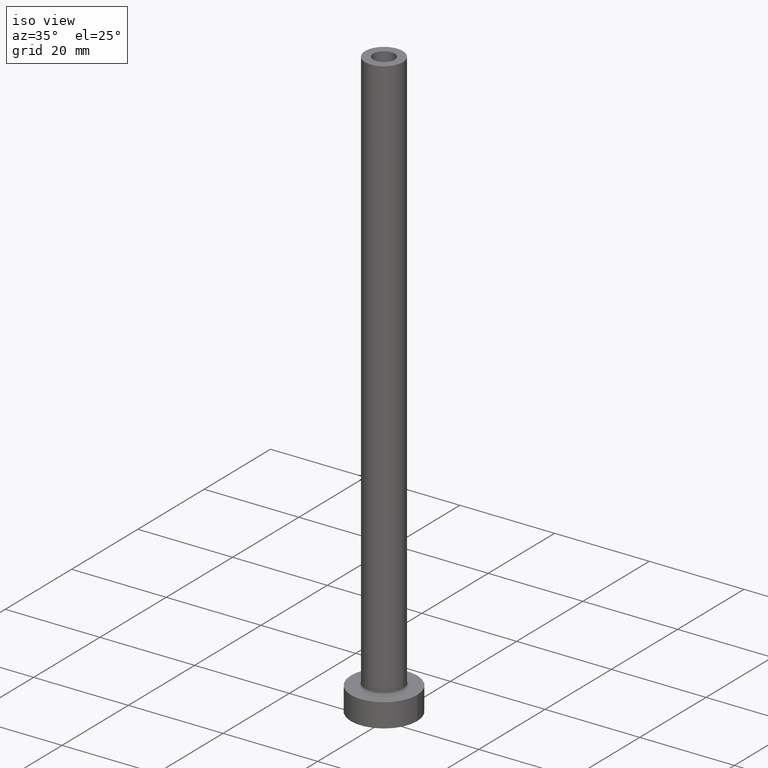
[diagram: clean part render]
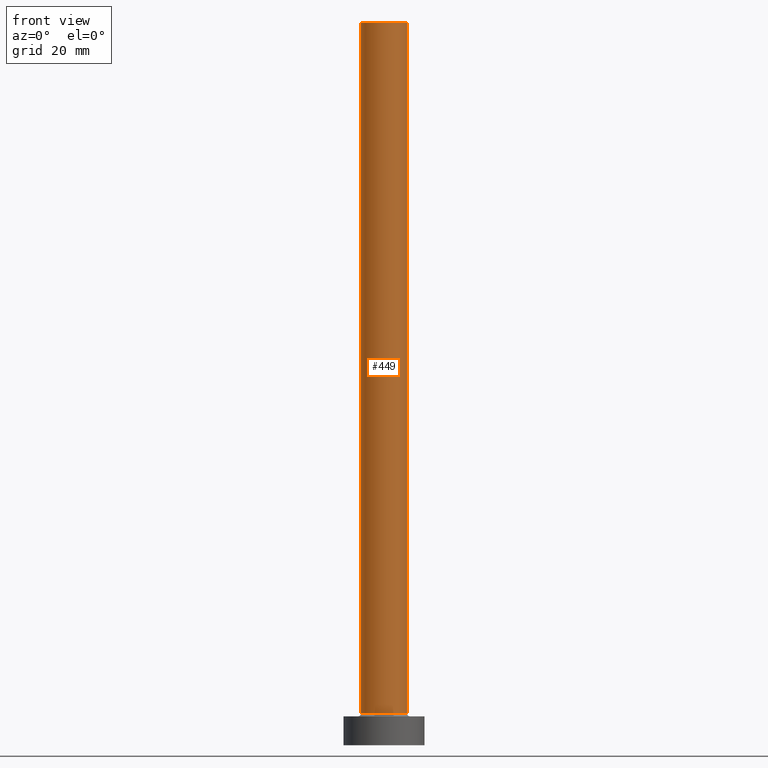
[diagram: tour spotlight — one face highlighted and labeled with its STEP entity id]
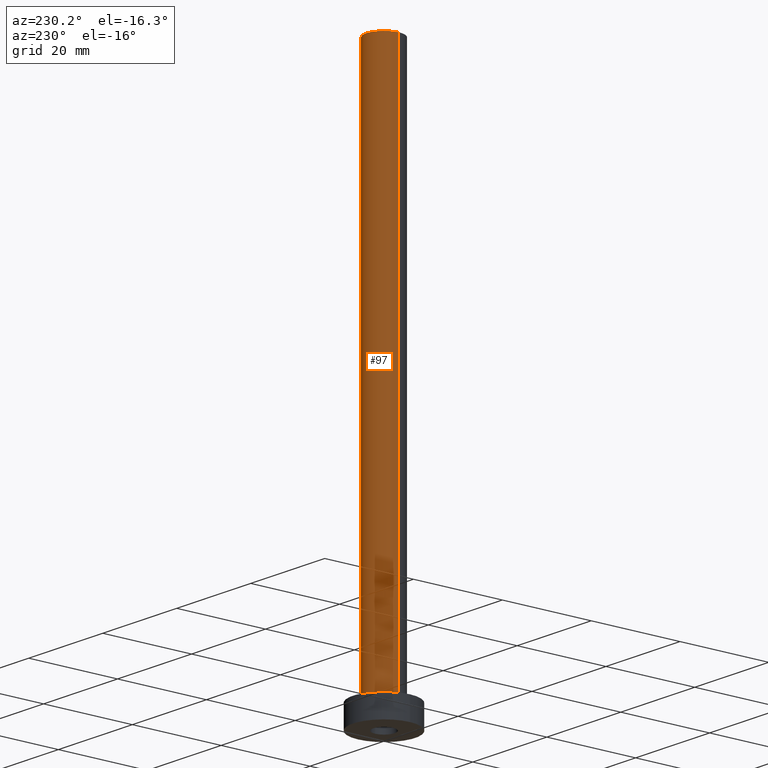
[diagram: tour spotlight — one face highlighted and labeled with its STEP entity id]
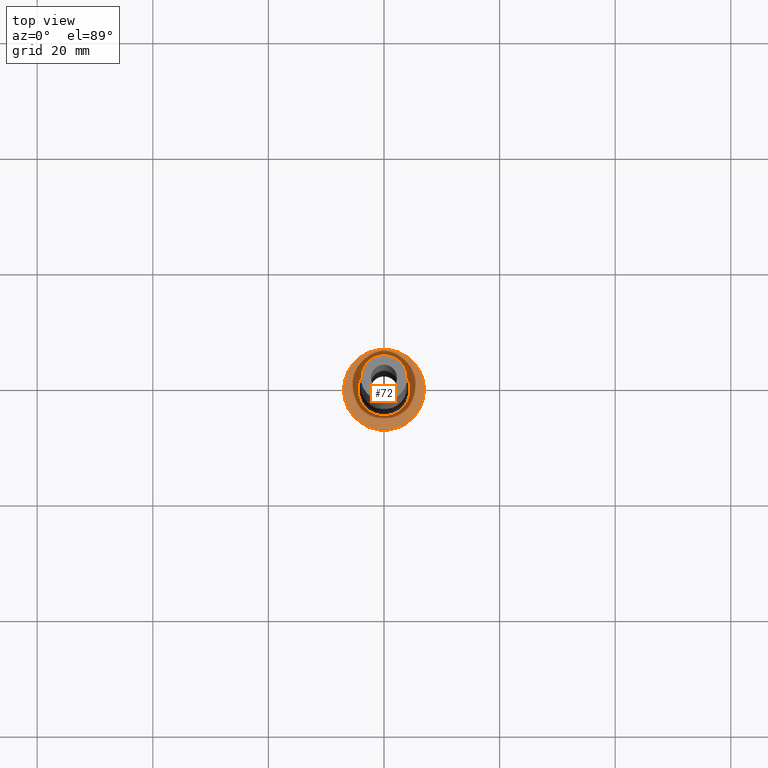
[diagram: tour spotlight — one face highlighted and labeled with its STEP entity id]
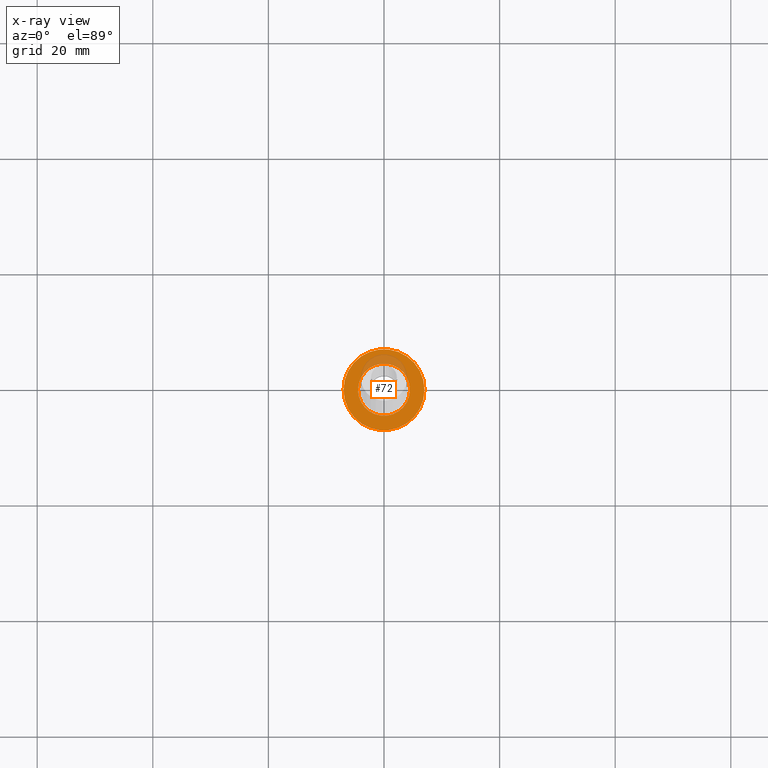
[diagram: x-ray of the same camera — body ghosted, this tour face saturated]
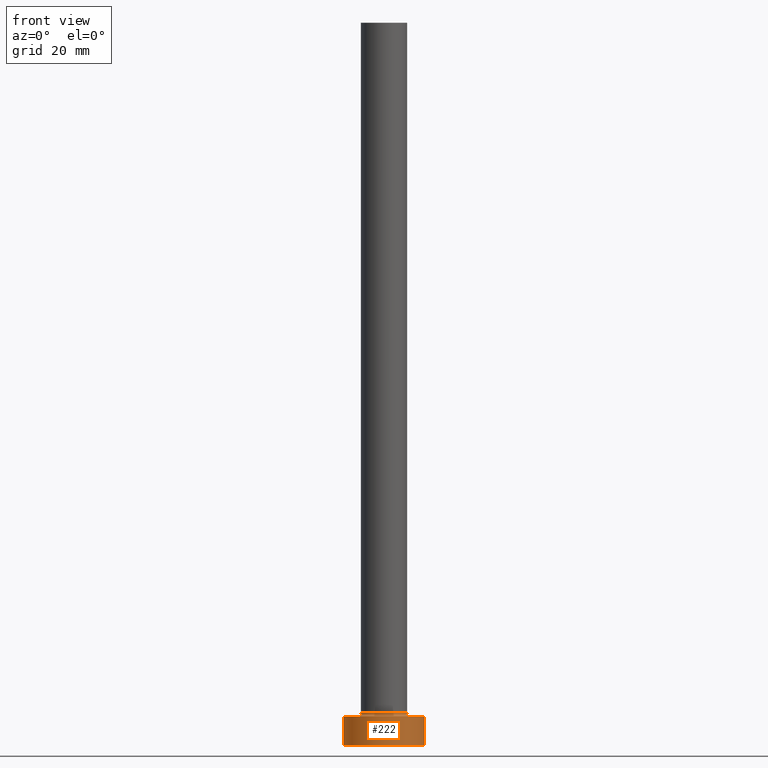
[diagram: tour spotlight — one face highlighted and labeled with its STEP entity id]
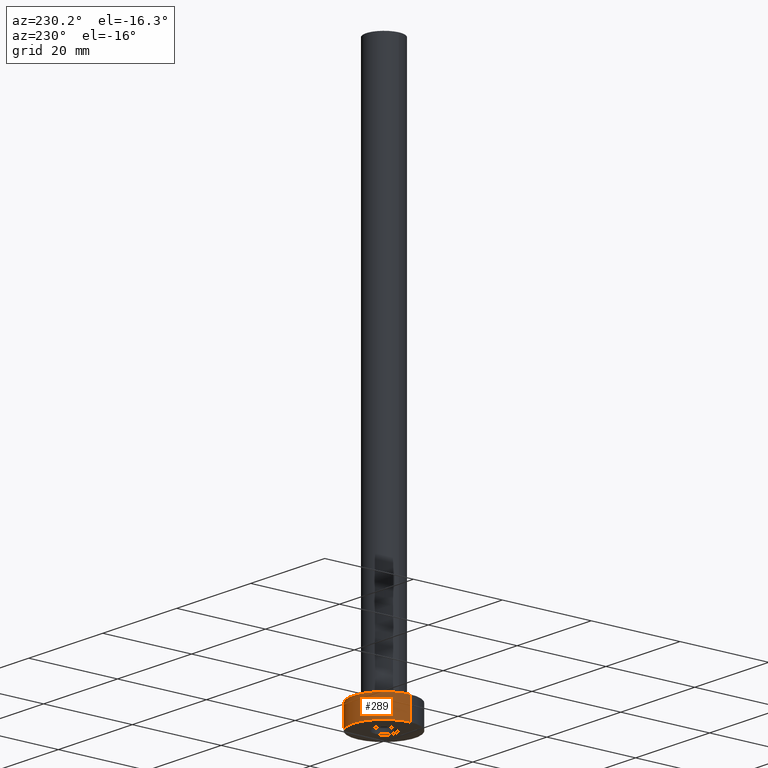
[diagram: tour spotlight — one face highlighted and labeled with its STEP entity id]
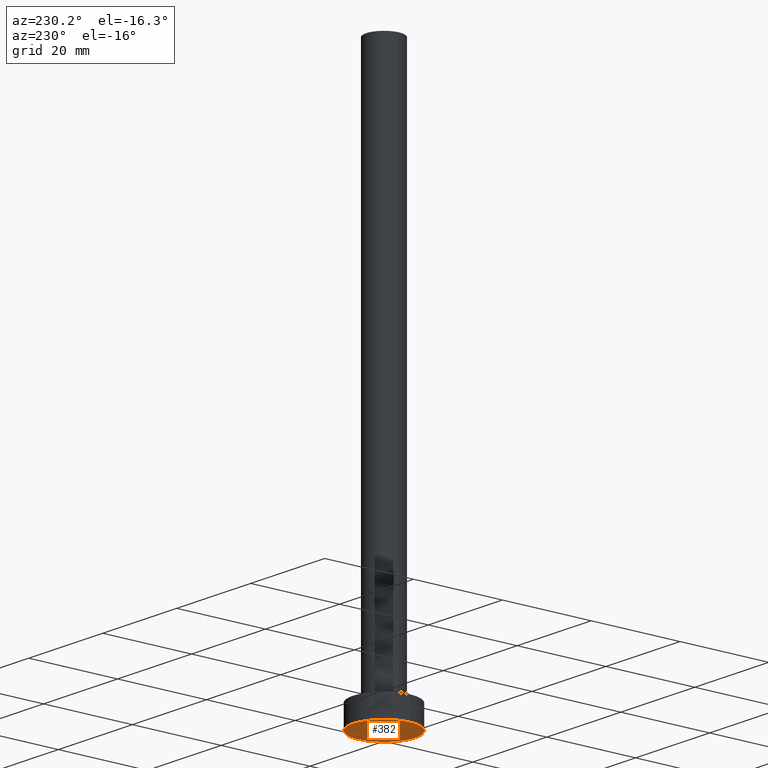
[diagram: tour spotlight — one face highlighted and labeled with its STEP entity id]
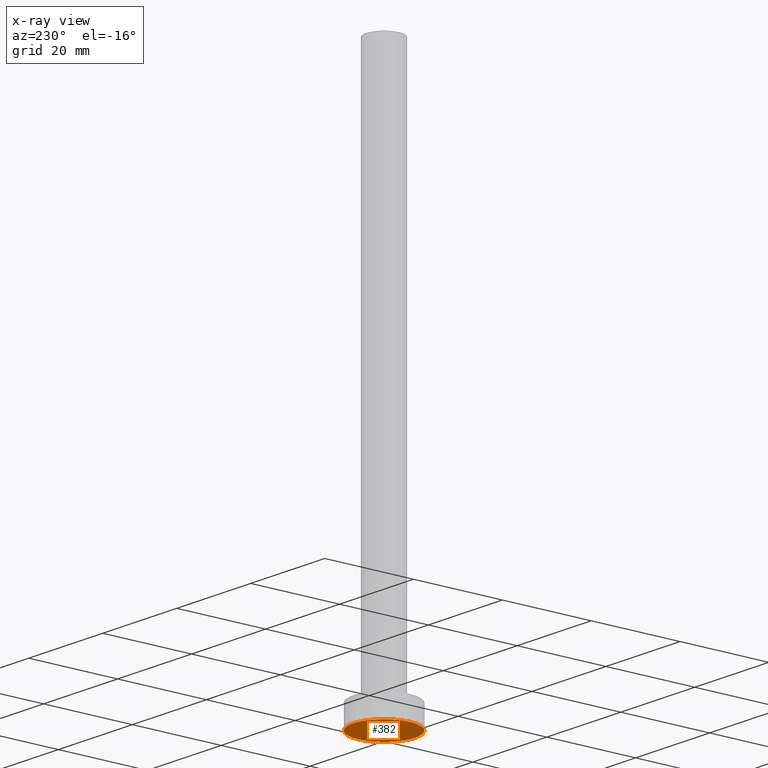
[diagram: x-ray of the same camera — body ghosted, this tour face saturated]
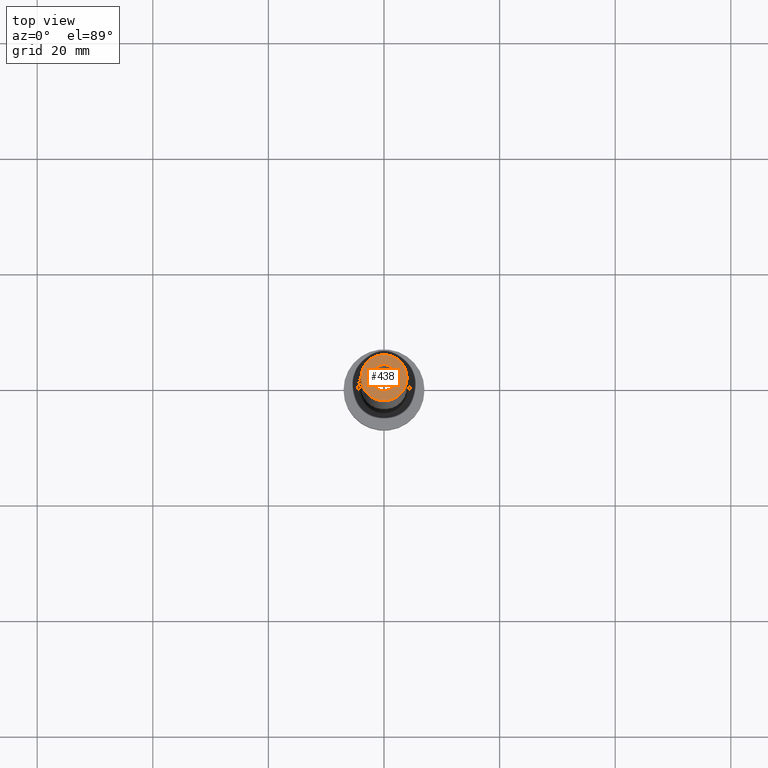
[diagram: tour spotlight — one face highlighted and labeled with its STEP entity id]
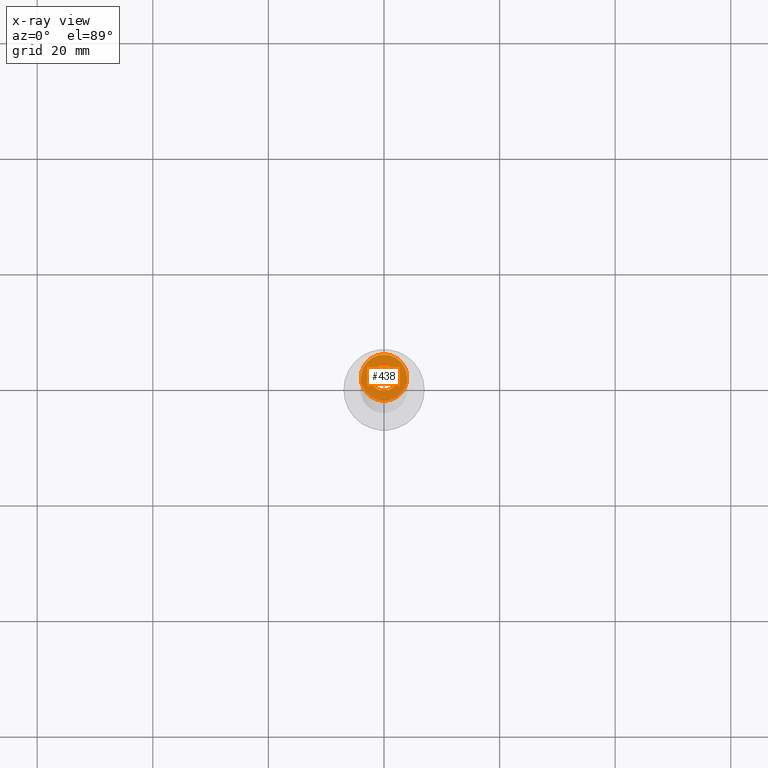
[diagram: x-ray of the same camera — body ghosted, this tour face saturated]
A machine part: a face-by-face anatomy tour. The part has 14 B-rep faces; the first image is the clean iso view, then the 7 largest visible faces are spotlighted one at a time (largest first), each with its STEP entity span.

Face 1 — front view, entity #449. In plain terms, the highlighted cylindrical surface (edge-blend (fillet) strip) has radius 4 mm, axis along (-0, -0, -1).
Definition (entity closure, byte-faithful):
#5 = DIRECTION ( 'NONE',  ( 0.000000000000000000, 0.000000000000000000, 1.000000000000000000 ) ) ;
#16 = VECTOR ( 'NONE', #100, 1000.000000000000000 ) ;
#19 = DIRECTION ( 'NONE',  ( -0.000000000000000000, -0.000000000000000000, -1.000000000000000000 ) ) ;
#35 = DIRECTION ( 'NONE',  ( 0.000000000000000000, 0.000000000000000000, 1.000000000000000000 ) ) ;
#40 = LINE ( 'NONE', #329, #299 ) ;
#53 = CARTESIAN_POINT ( 'NONE',  ( 4.000000000000000000, 4.898587196589412829E-16, 5.500000000000005329 ) ) ;
#58 = CYLINDRICAL_SURFACE ( 'NONE', #168, 4.000000000000000000 ) ;
#63 = AXIS2_PLACEMENT_3D ( 'NONE', #353, #35, #115 ) ;
#64 = CIRCLE ( 'NONE', #63, 4.000000000000000000 ) ;
#66 = CIRCLE ( 'NONE', #241, 4.000000000000000000 ) ;
#67 = DIRECTION ( 'NONE',  ( -1.000000000000000000, 0.000000000000000000, 0.000000000000000000 ) ) ;
#79 = DIRECTION ( 'NONE',  ( 1.000000000000000000, 0.000000000000000000, 0.000000000000000000 ) ) ;
#84 = VERTEX_POINT ( 'NONE', #446 ) ;
#100 = DIRECTION ( 'NONE',  ( -0.000000000000000000, -0.000000000000000000, -1.000000000000000000 ) ) ;
#115 = DIRECTION ( 'NONE',  ( 1.000000000000000000, 0.000000000000000000, 0.000000000000000000 ) ) ;
#123 = CARTESIAN_POINT ( 'NONE',  ( 4.000000000000000000, 4.898587196589412829E-16, 125.0000000000000000 ) ) ;
#133 = ORIENTED_EDGE ( 'NONE', *, *, #364, .T. ) ;
#151 = EDGE_CURVE ( 'NONE', #450, #447, #64, .T. ) ;
#167 = CARTESIAN_POINT ( 'NONE',  ( 0.000000000000000000, 0.000000000000000000, 125.0000000000000000 ) ) ;
#168 = AXIS2_PLACEMENT_3D ( 'NONE', #374, #19, #67 ) ;
#193 = FACE_OUTER_BOUND ( 'NONE', #237, .T. ) ;
#197 = LINE ( 'NONE', #204, #16 ) ;
#204 = CARTESIAN_POINT ( 'NONE',  ( 4.000000000000000000, 4.898587196589412829E-16, 125.0000000000000000 ) ) ;
#237 = EDGE_LOOP ( 'NONE', ( #313, #346, #133, #282 ) ) ;
#241 = AXIS2_PLACEMENT_3D ( 'NONE', #167, #5, #79 ) ;
#264 = EDGE_CURVE ( 'NONE', #84, #369, #66, .T. ) ;
#282 = ORIENTED_EDGE ( 'NONE', *, *, #151, .T. ) ;
#299 = VECTOR ( 'NONE', #389, 1000.000000000000000 ) ;
#313 = ORIENTED_EDGE ( 'NONE', *, *, #461, .F. ) ;
#329 = CARTESIAN_POINT ( 'NONE',  ( -4.000000000000000000, 0.000000000000000000, 125.0000000000000000 ) ) ;
#333 = CARTESIAN_POINT ( 'NONE',  ( -4.000000000000000000, 0.000000000000000000, 5.500000000000005329 ) ) ;
#346 = ORIENTED_EDGE ( 'NONE', *, *, #264, .F. ) ;
#353 = CARTESIAN_POINT ( 'NONE',  ( 0.000000000000000000, 0.000000000000000000, 5.500000000000005329 ) ) ;
#364 = EDGE_CURVE ( 'NONE', #84, #450, #40, .T. ) ;
#369 = VERTEX_POINT ( 'NONE', #123 ) ;
#374 = CARTESIAN_POINT ( 'NONE',  ( 0.000000000000000000, 0.000000000000000000, 125.0000000000000000 ) ) ;
#389 = DIRECTION ( 'NONE',  ( -0.000000000000000000, -0.000000000000000000, -1.000000000000000000 ) ) ;
#446 = CARTESIAN_POINT ( 'NONE',  ( -4.000000000000000000, 0.000000000000000000, 125.0000000000000000 ) ) ;
#447 = VERTEX_POINT ( 'NONE', #53 ) ;
#449 = ADVANCED_FACE ( 'NONE', ( #193 ), #58, .T. ) ;
#450 = VERTEX_POINT ( 'NONE', #333 ) ;
#461 = EDGE_CURVE ( 'NONE', #369, #447, #197, .T. ) ;

Face 2 — auxiliary view, entity #97. In plain terms, the highlighted cylindrical surface (edge-blend (fillet) strip) has radius 4 mm, axis along (-0, -0, -1).
Definition (entity closure, byte-faithful):
#16 = VECTOR ( 'NONE', #100, 1000.000000000000000 ) ;
#40 = LINE ( 'NONE', #329, #299 ) ;
#53 = CARTESIAN_POINT ( 'NONE',  ( 4.000000000000000000, 4.898587196589412829E-16, 5.500000000000005329 ) ) ;
#55 = CIRCLE ( 'NONE', #367, 4.000000000000000000 ) ;
#60 = FACE_OUTER_BOUND ( 'NONE', #335, .T. ) ;
#84 = VERTEX_POINT ( 'NONE', #446 ) ;
#97 = ADVANCED_FACE ( 'NONE', ( #60 ), #303, .T. ) ;
#100 = DIRECTION ( 'NONE',  ( -0.000000000000000000, -0.000000000000000000, -1.000000000000000000 ) ) ;
#108 = DIRECTION ( 'NONE',  ( -0.000000000000000000, -0.000000000000000000, -1.000000000000000000 ) ) ;
#123 = CARTESIAN_POINT ( 'NONE',  ( 4.000000000000000000, 4.898587196589412829E-16, 125.0000000000000000 ) ) ;
#127 = CARTESIAN_POINT ( 'NONE',  ( 0.000000000000000000, 0.000000000000000000, 5.500000000000005329 ) ) ;
#161 = EDGE_CURVE ( 'NONE', #369, #84, #452, .T. ) ;
#197 = LINE ( 'NONE', #204, #16 ) ;
#204 = CARTESIAN_POINT ( 'NONE',  ( 4.000000000000000000, 4.898587196589412829E-16, 125.0000000000000000 ) ) ;
#220 = DIRECTION ( 'NONE',  ( 1.000000000000000000, 0.000000000000000000, 0.000000000000000000 ) ) ;
#255 = ORIENTED_EDGE ( 'NONE', *, *, #364, .F. ) ;
#258 = DIRECTION ( 'NONE',  ( 0.000000000000000000, 0.000000000000000000, 1.000000000000000000 ) ) ;
#260 = ORIENTED_EDGE ( 'NONE', *, *, #461, .T. ) ;
#267 = DIRECTION ( 'NONE',  ( -1.000000000000000000, 0.000000000000000000, 0.000000000000000000 ) ) ;
#275 = AXIS2_PLACEMENT_3D ( 'NONE', #409, #108, #267 ) ;
#281 = DIRECTION ( 'NONE',  ( 0.000000000000000000, 0.000000000000000000, 1.000000000000000000 ) ) ;
#299 = VECTOR ( 'NONE', #389, 1000.000000000000000 ) ;
#303 = CYLINDRICAL_SURFACE ( 'NONE', #275, 4.000000000000000000 ) ;
#306 = AXIS2_PLACEMENT_3D ( 'NONE', #351, #281, #220 ) ;
#329 = CARTESIAN_POINT ( 'NONE',  ( -4.000000000000000000, 0.000000000000000000, 125.0000000000000000 ) ) ;
#333 = CARTESIAN_POINT ( 'NONE',  ( -4.000000000000000000, 0.000000000000000000, 5.500000000000005329 ) ) ;
#335 = EDGE_LOOP ( 'NONE', ( #432, #260, #410, #255 ) ) ;
#351 = CARTESIAN_POINT ( 'NONE',  ( 0.000000000000000000, 0.000000000000000000, 125.0000000000000000 ) ) ;
#364 = EDGE_CURVE ( 'NONE', #84, #450, #40, .T. ) ;
#367 = AXIS2_PLACEMENT_3D ( 'NONE', #127, #258, #396 ) ;
#369 = VERTEX_POINT ( 'NONE', #123 ) ;
#389 = DIRECTION ( 'NONE',  ( -0.000000000000000000, -0.000000000000000000, -1.000000000000000000 ) ) ;
#396 = DIRECTION ( 'NONE',  ( 1.000000000000000000, 0.000000000000000000, 0.000000000000000000 ) ) ;
#409 = CARTESIAN_POINT ( 'NONE',  ( 0.000000000000000000, 0.000000000000000000, 125.0000000000000000 ) ) ;
#410 = ORIENTED_EDGE ( 'NONE', *, *, #425, .T. ) ;
#425 = EDGE_CURVE ( 'NONE', #447, #450, #55, .T. ) ;
#432 = ORIENTED_EDGE ( 'NONE', *, *, #161, .F. ) ;
#446 = CARTESIAN_POINT ( 'NONE',  ( -4.000000000000000000, 0.000000000000000000, 125.0000000000000000 ) ) ;
#447 = VERTEX_POINT ( 'NONE', #53 ) ;
#450 = VERTEX_POINT ( 'NONE', #333 ) ;
#452 = CIRCLE ( 'NONE', #306, 4.000000000000000000 ) ;
#461 = EDGE_CURVE ( 'NONE', #369, #447, #197, .T. ) ;

Face 3 — top view, entity #72. An x-ray twin of the same camera follows (body ghosted, this face saturated) — the face is partly hidden behind the body. In plain terms, the highlighted planar face has unit normal (0, 0, 1).
Definition (entity closure, byte-faithful):
#1 = AXIS2_PLACEMENT_3D ( 'NONE', #297, #437, #441 ) ;
#12 = AXIS2_PLACEMENT_3D ( 'NONE', #337, #231, #136 ) ;
#15 = VERTEX_POINT ( 'NONE', #429 ) ;
#37 = CARTESIAN_POINT ( 'NONE',  ( -4.500000000000000888, 5.510910596163088569E-16, 5.000000000000002665 ) ) ;
#45 = DIRECTION ( 'NONE',  ( 1.000000000000000000, 0.000000000000000000, 0.000000000000000000 ) ) ;
#49 = EDGE_CURVE ( 'NONE', #436, #15, #135, .T. ) ;
#50 = CARTESIAN_POINT ( 'NONE',  ( -7.000000000000000000, 0.000000000000000000, 5.000000000000000000 ) ) ;
#72 = ADVANCED_FACE ( 'NONE', ( #293, #191 ), #158, .T. ) ;
#85 = CARTESIAN_POINT ( 'NONE',  ( 0.000000000000000000, 0.000000000000000000, 5.000000000000000000 ) ) ;
#88 = CIRCLE ( 'NONE', #1, 7.000000000000000000 ) ;
#91 = CIRCLE ( 'NONE', #113, 4.500000000000000888 ) ;
#94 = DIRECTION ( 'NONE',  ( -0.000000000000000000, -0.000000000000000000, -1.000000000000000000 ) ) ;
#96 = ORIENTED_EDGE ( 'NONE', *, *, #131, .T. ) ;
#113 = AXIS2_PLACEMENT_3D ( 'NONE', #85, #94, #154 ) ;
#119 = CARTESIAN_POINT ( 'NONE',  ( 0.000000000000000000, 0.000000000000000000, 5.000000000000000000 ) ) ;
#131 = EDGE_CURVE ( 'NONE', #15, #436, #88, .T. ) ;
#135 = CIRCLE ( 'NONE', #407, 7.000000000000000000 ) ;
#136 = DIRECTION ( 'NONE',  ( 1.000000000000000000, 0.000000000000000000, -0.000000000000000000 ) ) ;
#154 = DIRECTION ( 'NONE',  ( 1.000000000000000000, 0.000000000000000000, 0.000000000000000000 ) ) ;
#158 = PLANE ( 'NONE',  #12 ) ;
#164 = ORIENTED_EDGE ( 'NONE', *, *, #371, .T. ) ;
#181 = DIRECTION ( 'NONE',  ( 1.000000000000000000, 0.000000000000000000, 0.000000000000000000 ) ) ;
#191 = FACE_OUTER_BOUND ( 'NONE', #330, .T. ) ;
#224 = ORIENTED_EDGE ( 'NONE', *, *, #49, .T. ) ;
#225 = AXIS2_PLACEMENT_3D ( 'NONE', #119, #423, #181 ) ;
#231 = DIRECTION ( 'NONE',  ( 0.000000000000000000, 0.000000000000000000, 1.000000000000000000 ) ) ;
#247 = VERTEX_POINT ( 'NONE', #37 ) ;
#272 = ORIENTED_EDGE ( 'NONE', *, *, #292, .T. ) ;
#290 = CARTESIAN_POINT ( 'NONE',  ( 4.500000000000000888, 0.000000000000000000, 5.000000000000002665 ) ) ;
#292 = EDGE_CURVE ( 'NONE', #247, #370, #325, .T. ) ;
#293 = FACE_BOUND ( 'NONE', #324, .T. ) ;
#297 = CARTESIAN_POINT ( 'NONE',  ( 0.000000000000000000, 0.000000000000000000, 5.000000000000000000 ) ) ;
#324 = EDGE_LOOP ( 'NONE', ( #164, #272 ) ) ;
#325 = CIRCLE ( 'NONE', #225, 4.500000000000000888 ) ;
#330 = EDGE_LOOP ( 'NONE', ( #224, #96 ) ) ;
#337 = CARTESIAN_POINT ( 'NONE',  ( 0.000000000000000000, 0.000000000000000000, 5.000000000000000000 ) ) ;
#359 = DIRECTION ( 'NONE',  ( 0.000000000000000000, 0.000000000000000000, 1.000000000000000000 ) ) ;
#370 = VERTEX_POINT ( 'NONE', #290 ) ;
#371 = EDGE_CURVE ( 'NONE', #370, #247, #91, .T. ) ;
#393 = CARTESIAN_POINT ( 'NONE',  ( 0.000000000000000000, 0.000000000000000000, 5.000000000000000000 ) ) ;
#407 = AXIS2_PLACEMENT_3D ( 'NONE', #393, #359, #45 ) ;
#423 = DIRECTION ( 'NONE',  ( -0.000000000000000000, -0.000000000000000000, -1.000000000000000000 ) ) ;
#429 = CARTESIAN_POINT ( 'NONE',  ( 7.000000000000000000, 8.572527594031473190E-16, 5.000000000000000000 ) ) ;
#436 = VERTEX_POINT ( 'NONE', #50 ) ;
#437 = DIRECTION ( 'NONE',  ( 0.000000000000000000, 0.000000000000000000, 1.000000000000000000 ) ) ;
#441 = DIRECTION ( 'NONE',  ( 1.000000000000000000, 0.000000000000000000, 0.000000000000000000 ) ) ;

Face 4 — front view, entity #222. In plain terms, the highlighted cylindrical surface (partial cylindrical patch) has radius 7 mm, axis along (-0, -0, -1).
Definition (entity closure, byte-faithful):
#3 = VECTOR ( 'NONE', #90, 1000.000000000000000 ) ;
#15 = VERTEX_POINT ( 'NONE', #429 ) ;
#20 = EDGE_CURVE ( 'NONE', #15, #394, #424, .T. ) ;
#45 = DIRECTION ( 'NONE',  ( 1.000000000000000000, 0.000000000000000000, 0.000000000000000000 ) ) ;
#49 = EDGE_CURVE ( 'NONE', #436, #15, #135, .T. ) ;
#50 = CARTESIAN_POINT ( 'NONE',  ( -7.000000000000000000, 0.000000000000000000, 5.000000000000000000 ) ) ;
#74 = EDGE_CURVE ( 'NONE', #169, #394, #190, .T. ) ;
#90 = DIRECTION ( 'NONE',  ( -0.000000000000000000, -0.000000000000000000, -1.000000000000000000 ) ) ;
#104 = DIRECTION ( 'NONE',  ( 0.000000000000000000, 0.000000000000000000, 1.000000000000000000 ) ) ;
#118 = AXIS2_PLACEMENT_3D ( 'NONE', #271, #309, #142 ) ;
#121 = CARTESIAN_POINT ( 'NONE',  ( 7.000000000000000000, 8.572527594031473190E-16, 5.000000000000000000 ) ) ;
#124 = VECTOR ( 'NONE', #253, 1000.000000000000000 ) ;
#128 = ORIENTED_EDGE ( 'NONE', *, *, #411, .T. ) ;
#135 = CIRCLE ( 'NONE', #407, 7.000000000000000000 ) ;
#142 = DIRECTION ( 'NONE',  ( -1.000000000000000000, 0.000000000000000000, 0.000000000000000000 ) ) ;
#146 = FACE_OUTER_BOUND ( 'NONE', #399, .T. ) ;
#169 = VERTEX_POINT ( 'NONE', #315 ) ;
#184 = CARTESIAN_POINT ( 'NONE',  ( -7.000000000000000000, 0.000000000000000000, 5.000000000000000000 ) ) ;
#190 = CIRCLE ( 'NONE', #415, 7.000000000000000000 ) ;
#222 = ADVANCED_FACE ( 'NONE', ( #146 ), #456, .T. ) ;
#253 = DIRECTION ( 'NONE',  ( -0.000000000000000000, -0.000000000000000000, -1.000000000000000000 ) ) ;
#263 = DIRECTION ( 'NONE',  ( 1.000000000000000000, 0.000000000000000000, 0.000000000000000000 ) ) ;
#271 = CARTESIAN_POINT ( 'NONE',  ( 0.000000000000000000, 0.000000000000000000, 5.000000000000000000 ) ) ;
#288 = ORIENTED_EDGE ( 'NONE', *, *, #74, .T. ) ;
#309 = DIRECTION ( 'NONE',  ( -0.000000000000000000, -0.000000000000000000, -1.000000000000000000 ) ) ;
#315 = CARTESIAN_POINT ( 'NONE',  ( -7.000000000000000000, 0.000000000000000000, 0.000000000000000000 ) ) ;
#322 = ORIENTED_EDGE ( 'NONE', *, *, #49, .F. ) ;
#338 = ORIENTED_EDGE ( 'NONE', *, *, #20, .F. ) ;
#359 = DIRECTION ( 'NONE',  ( 0.000000000000000000, 0.000000000000000000, 1.000000000000000000 ) ) ;
#392 = CARTESIAN_POINT ( 'NONE',  ( 7.000000000000000000, 8.572527594031473190E-16, 0.000000000000000000 ) ) ;
#393 = CARTESIAN_POINT ( 'NONE',  ( 0.000000000000000000, 0.000000000000000000, 5.000000000000000000 ) ) ;
#394 = VERTEX_POINT ( 'NONE', #392 ) ;
#399 = EDGE_LOOP ( 'NONE', ( #338, #322, #128, #288 ) ) ;
#400 = CARTESIAN_POINT ( 'NONE',  ( 0.000000000000000000, 0.000000000000000000, 0.000000000000000000 ) ) ;
#407 = AXIS2_PLACEMENT_3D ( 'NONE', #393, #359, #45 ) ;
#411 = EDGE_CURVE ( 'NONE', #436, #169, #430, .T. ) ;
#415 = AXIS2_PLACEMENT_3D ( 'NONE', #400, #104, #263 ) ;
#424 = LINE ( 'NONE', #121, #124 ) ;
#429 = CARTESIAN_POINT ( 'NONE',  ( 7.000000000000000000, 8.572527594031473190E-16, 5.000000000000000000 ) ) ;
#430 = LINE ( 'NONE', #184, #3 ) ;
#436 = VERTEX_POINT ( 'NONE', #50 ) ;
#456 = CYLINDRICAL_SURFACE ( 'NONE', #118, 7.000000000000000000 ) ;

Face 5 — auxiliary view, entity #289. In plain terms, the highlighted cylindrical surface (partial cylindrical patch) has radius 7 mm, axis along (-0, -0, -1).
Definition (entity closure, byte-faithful):
#1 = AXIS2_PLACEMENT_3D ( 'NONE', #297, #437, #441 ) ;
#3 = VECTOR ( 'NONE', #90, 1000.000000000000000 ) ;
#15 = VERTEX_POINT ( 'NONE', #429 ) ;
#20 = EDGE_CURVE ( 'NONE', #15, #394, #424, .T. ) ;
#30 = CARTESIAN_POINT ( 'NONE',  ( 0.000000000000000000, 0.000000000000000000, 0.000000000000000000 ) ) ;
#50 = CARTESIAN_POINT ( 'NONE',  ( -7.000000000000000000, 0.000000000000000000, 5.000000000000000000 ) ) ;
#51 = ORIENTED_EDGE ( 'NONE', *, *, #20, .T. ) ;
#65 = ORIENTED_EDGE ( 'NONE', *, *, #131, .F. ) ;
#82 = CIRCLE ( 'NONE', #287, 7.000000000000000000 ) ;
#88 = CIRCLE ( 'NONE', #1, 7.000000000000000000 ) ;
#90 = DIRECTION ( 'NONE',  ( -0.000000000000000000, -0.000000000000000000, -1.000000000000000000 ) ) ;
#121 = CARTESIAN_POINT ( 'NONE',  ( 7.000000000000000000, 8.572527594031473190E-16, 5.000000000000000000 ) ) ;
#124 = VECTOR ( 'NONE', #253, 1000.000000000000000 ) ;
#131 = EDGE_CURVE ( 'NONE', #15, #436, #88, .T. ) ;
#169 = VERTEX_POINT ( 'NONE', #315 ) ;
#171 = DIRECTION ( 'NONE',  ( 0.000000000000000000, 0.000000000000000000, 1.000000000000000000 ) ) ;
#174 = DIRECTION ( 'NONE',  ( 1.000000000000000000, 0.000000000000000000, 0.000000000000000000 ) ) ;
#184 = CARTESIAN_POINT ( 'NONE',  ( -7.000000000000000000, 0.000000000000000000, 5.000000000000000000 ) ) ;
#200 = EDGE_CURVE ( 'NONE', #394, #169, #82, .T. ) ;
#221 = ORIENTED_EDGE ( 'NONE', *, *, #200, .T. ) ;
#253 = DIRECTION ( 'NONE',  ( -0.000000000000000000, -0.000000000000000000, -1.000000000000000000 ) ) ;
#268 = EDGE_LOOP ( 'NONE', ( #65, #51, #221, #457 ) ) ;
#287 = AXIS2_PLACEMENT_3D ( 'NONE', #30, #171, #174 ) ;
#289 = ADVANCED_FACE ( 'NONE', ( #307 ), #349, .T. ) ;
#297 = CARTESIAN_POINT ( 'NONE',  ( 0.000000000000000000, 0.000000000000000000, 5.000000000000000000 ) ) ;
#307 = FACE_OUTER_BOUND ( 'NONE', #268, .T. ) ;
#312 = CARTESIAN_POINT ( 'NONE',  ( 0.000000000000000000, 0.000000000000000000, 5.000000000000000000 ) ) ;
#315 = CARTESIAN_POINT ( 'NONE',  ( -7.000000000000000000, 0.000000000000000000, 0.000000000000000000 ) ) ;
#349 = CYLINDRICAL_SURFACE ( 'NONE', #417, 7.000000000000000000 ) ;
#392 = CARTESIAN_POINT ( 'NONE',  ( 7.000000000000000000, 8.572527594031473190E-16, 0.000000000000000000 ) ) ;
#394 = VERTEX_POINT ( 'NONE', #392 ) ;
#411 = EDGE_CURVE ( 'NONE', #436, #169, #430, .T. ) ;
#417 = AXIS2_PLACEMENT_3D ( 'NONE', #312, #418, #460 ) ;
#418 = DIRECTION ( 'NONE',  ( -0.000000000000000000, -0.000000000000000000, -1.000000000000000000 ) ) ;
#424 = LINE ( 'NONE', #121, #124 ) ;
#429 = CARTESIAN_POINT ( 'NONE',  ( 7.000000000000000000, 8.572527594031473190E-16, 5.000000000000000000 ) ) ;
#430 = LINE ( 'NONE', #184, #3 ) ;
#436 = VERTEX_POINT ( 'NONE', #50 ) ;
#437 = DIRECTION ( 'NONE',  ( 0.000000000000000000, 0.000000000000000000, 1.000000000000000000 ) ) ;
#441 = DIRECTION ( 'NONE',  ( 1.000000000000000000, 0.000000000000000000, 0.000000000000000000 ) ) ;
#457 = ORIENTED_EDGE ( 'NONE', *, *, #411, .F. ) ;
#460 = DIRECTION ( 'NONE',  ( -1.000000000000000000, 0.000000000000000000, 0.000000000000000000 ) ) ;

Face 6 — auxiliary view, entity #382. An x-ray twin of the same camera follows (body ghosted, this face saturated) — the face is partly hidden behind the body. In plain terms, the highlighted planar face has unit normal (0, 0, 1).
Definition (entity closure, byte-faithful):
#10 = DIRECTION ( 'NONE',  ( 0.000000000000000000, 0.000000000000000000, 1.000000000000000000 ) ) ;
#30 = CARTESIAN_POINT ( 'NONE',  ( 0.000000000000000000, 0.000000000000000000, 0.000000000000000000 ) ) ;
#36 = CIRCLE ( 'NONE', #248, 2.399999999999999911 ) ;
#41 = AXIS2_PLACEMENT_3D ( 'NONE', #262, #93, #86 ) ;
#43 = CARTESIAN_POINT ( 'NONE',  ( 0.000000000000000000, 0.000000000000000000, 0.000000000000000000 ) ) ;
#54 = VERTEX_POINT ( 'NONE', #125 ) ;
#57 = EDGE_CURVE ( 'NONE', #62, #54, #323, .T. ) ;
#62 = VERTEX_POINT ( 'NONE', #155 ) ;
#69 = ORIENTED_EDGE ( 'NONE', *, *, #310, .F. ) ;
#74 = EDGE_CURVE ( 'NONE', #169, #394, #190, .T. ) ;
#82 = CIRCLE ( 'NONE', #287, 7.000000000000000000 ) ;
#86 = DIRECTION ( 'NONE',  ( 1.000000000000000000, 0.000000000000000000, 0.000000000000000000 ) ) ;
#93 = DIRECTION ( 'NONE',  ( -0.000000000000000000, -0.000000000000000000, -1.000000000000000000 ) ) ;
#104 = DIRECTION ( 'NONE',  ( 0.000000000000000000, 0.000000000000000000, 1.000000000000000000 ) ) ;
#120 = PLANE ( 'NONE',  #387 ) ;
#125 = CARTESIAN_POINT ( 'NONE',  ( -2.399999999999999911, 0.000000000000000000, 0.000000000000000000 ) ) ;
#153 = DIRECTION ( 'NONE',  ( 1.000000000000000000, 0.000000000000000000, 0.000000000000000000 ) ) ;
#155 = CARTESIAN_POINT ( 'NONE',  ( 2.399999999999999911, 2.939152317953647106E-16, 0.000000000000000000 ) ) ;
#169 = VERTEX_POINT ( 'NONE', #315 ) ;
#171 = DIRECTION ( 'NONE',  ( 0.000000000000000000, 0.000000000000000000, 1.000000000000000000 ) ) ;
#172 = ORIENTED_EDGE ( 'NONE', *, *, #57, .F. ) ;
#174 = DIRECTION ( 'NONE',  ( 1.000000000000000000, 0.000000000000000000, 0.000000000000000000 ) ) ;
#179 = DIRECTION ( 'NONE',  ( -0.000000000000000000, -0.000000000000000000, -1.000000000000000000 ) ) ;
#186 = CARTESIAN_POINT ( 'NONE',  ( 0.000000000000000000, 0.000000000000000000, 0.000000000000000000 ) ) ;
#190 = CIRCLE ( 'NONE', #415, 7.000000000000000000 ) ;
#195 = EDGE_LOOP ( 'NONE', ( #445, #201 ) ) ;
#200 = EDGE_CURVE ( 'NONE', #394, #169, #82, .T. ) ;
#201 = ORIENTED_EDGE ( 'NONE', *, *, #200, .F. ) ;
#248 = AXIS2_PLACEMENT_3D ( 'NONE', #186, #179, #153 ) ;
#254 = DIRECTION ( 'NONE',  ( 1.000000000000000000, 0.000000000000000000, -0.000000000000000000 ) ) ;
#262 = CARTESIAN_POINT ( 'NONE',  ( 0.000000000000000000, 0.000000000000000000, 0.000000000000000000 ) ) ;
#263 = DIRECTION ( 'NONE',  ( 1.000000000000000000, 0.000000000000000000, 0.000000000000000000 ) ) ;
#287 = AXIS2_PLACEMENT_3D ( 'NONE', #30, #171, #174 ) ;
#295 = FACE_OUTER_BOUND ( 'NONE', #195, .T. ) ;
#310 = EDGE_CURVE ( 'NONE', #54, #62, #36, .T. ) ;
#315 = CARTESIAN_POINT ( 'NONE',  ( -7.000000000000000000, 0.000000000000000000, 0.000000000000000000 ) ) ;
#323 = CIRCLE ( 'NONE', #41, 2.399999999999999911 ) ;
#372 = EDGE_LOOP ( 'NONE', ( #69, #172 ) ) ;
#382 = ADVANCED_FACE ( 'NONE', ( #426, #295 ), #120, .F. ) ;
#387 = AXIS2_PLACEMENT_3D ( 'NONE', #43, #10, #254 ) ;
#392 = CARTESIAN_POINT ( 'NONE',  ( 7.000000000000000000, 8.572527594031473190E-16, 0.000000000000000000 ) ) ;
#394 = VERTEX_POINT ( 'NONE', #392 ) ;
#400 = CARTESIAN_POINT ( 'NONE',  ( 0.000000000000000000, 0.000000000000000000, 0.000000000000000000 ) ) ;
#415 = AXIS2_PLACEMENT_3D ( 'NONE', #400, #104, #263 ) ;
#426 = FACE_BOUND ( 'NONE', #372, .T. ) ;
#445 = ORIENTED_EDGE ( 'NONE', *, *, #74, .F. ) ;

Face 7 — top view, entity #438. An x-ray twin of the same camera follows (body ghosted, this face saturated) — the face is partly hidden behind the body. In plain terms, the highlighted planar face has unit normal (0, 0, 1).
Definition (entity closure, byte-faithful):
#5 = DIRECTION ( 'NONE',  ( 0.000000000000000000, 0.000000000000000000, 1.000000000000000000 ) ) ;
#14 = FACE_OUTER_BOUND ( 'NONE', #38, .T. ) ;
#26 = DIRECTION ( 'NONE',  ( 1.000000000000000000, 0.000000000000000000, 0.000000000000000000 ) ) ;
#32 = EDGE_LOOP ( 'NONE', ( #228, #202 ) ) ;
#38 = EDGE_LOOP ( 'NONE', ( #232, #427 ) ) ;
#39 = CARTESIAN_POINT ( 'NONE',  ( 2.250000000000000000, 2.755455298081543792E-16, 125.0000000000000000 ) ) ;
#52 = AXIS2_PLACEMENT_3D ( 'NONE', #342, #206, #26 ) ;
#66 = CIRCLE ( 'NONE', #241, 4.000000000000000000 ) ;
#79 = DIRECTION ( 'NONE',  ( 1.000000000000000000, 0.000000000000000000, 0.000000000000000000 ) ) ;
#80 = DIRECTION ( 'NONE',  ( 0.000000000000000000, 0.000000000000000000, 1.000000000000000000 ) ) ;
#84 = VERTEX_POINT ( 'NONE', #446 ) ;
#89 = EDGE_CURVE ( 'NONE', #291, #376, #385, .T. ) ;
#123 = CARTESIAN_POINT ( 'NONE',  ( 4.000000000000000000, 4.898587196589412829E-16, 125.0000000000000000 ) ) ;
#129 = CARTESIAN_POINT ( 'NONE',  ( 0.000000000000000000, 0.000000000000000000, 125.0000000000000000 ) ) ;
#148 = AXIS2_PLACEMENT_3D ( 'NONE', #129, #261, #398 ) ;
#157 = PLANE ( 'NONE',  #148 ) ;
#161 = EDGE_CURVE ( 'NONE', #369, #84, #452, .T. ) ;
#167 = CARTESIAN_POINT ( 'NONE',  ( 0.000000000000000000, 0.000000000000000000, 125.0000000000000000 ) ) ;
#188 = FACE_BOUND ( 'NONE', #32, .T. ) ;
#202 = ORIENTED_EDGE ( 'NONE', *, *, #216, .F. ) ;
#206 = DIRECTION ( 'NONE',  ( 0.000000000000000000, 0.000000000000000000, 1.000000000000000000 ) ) ;
#216 = EDGE_CURVE ( 'NONE', #376, #291, #433, .T. ) ;
#220 = DIRECTION ( 'NONE',  ( 1.000000000000000000, 0.000000000000000000, 0.000000000000000000 ) ) ;
#228 = ORIENTED_EDGE ( 'NONE', *, *, #89, .F. ) ;
#232 = ORIENTED_EDGE ( 'NONE', *, *, #264, .T. ) ;
#241 = AXIS2_PLACEMENT_3D ( 'NONE', #167, #5, #79 ) ;
#261 = DIRECTION ( 'NONE',  ( 0.000000000000000000, 0.000000000000000000, 1.000000000000000000 ) ) ;
#264 = EDGE_CURVE ( 'NONE', #84, #369, #66, .T. ) ;
#270 = AXIS2_PLACEMENT_3D ( 'NONE', #421, #80, #412 ) ;
#278 = CARTESIAN_POINT ( 'NONE',  ( -2.250000000000000000, 0.000000000000000000, 125.0000000000000000 ) ) ;
#281 = DIRECTION ( 'NONE',  ( 0.000000000000000000, 0.000000000000000000, 1.000000000000000000 ) ) ;
#291 = VERTEX_POINT ( 'NONE', #278 ) ;
#306 = AXIS2_PLACEMENT_3D ( 'NONE', #351, #281, #220 ) ;
#342 = CARTESIAN_POINT ( 'NONE',  ( 0.000000000000000000, 0.000000000000000000, 125.0000000000000000 ) ) ;
#351 = CARTESIAN_POINT ( 'NONE',  ( 0.000000000000000000, 0.000000000000000000, 125.0000000000000000 ) ) ;
#369 = VERTEX_POINT ( 'NONE', #123 ) ;
#376 = VERTEX_POINT ( 'NONE', #39 ) ;
#385 = CIRCLE ( 'NONE', #52, 2.250000000000000000 ) ;
#398 = DIRECTION ( 'NONE',  ( 1.000000000000000000, 0.000000000000000000, -0.000000000000000000 ) ) ;
#412 = DIRECTION ( 'NONE',  ( 1.000000000000000000, 0.000000000000000000, 0.000000000000000000 ) ) ;
#421 = CARTESIAN_POINT ( 'NONE',  ( 0.000000000000000000, 0.000000000000000000, 125.0000000000000000 ) ) ;
#427 = ORIENTED_EDGE ( 'NONE', *, *, #161, .T. ) ;
#433 = CIRCLE ( 'NONE', #270, 2.250000000000000000 ) ;
#438 = ADVANCED_FACE ( 'NONE', ( #188, #14 ), #157, .T. ) ;
#446 = CARTESIAN_POINT ( 'NONE',  ( -4.000000000000000000, 0.000000000000000000, 125.0000000000000000 ) ) ;
#452 = CIRCLE ( 'NONE', #306, 4.000000000000000000 ) ;